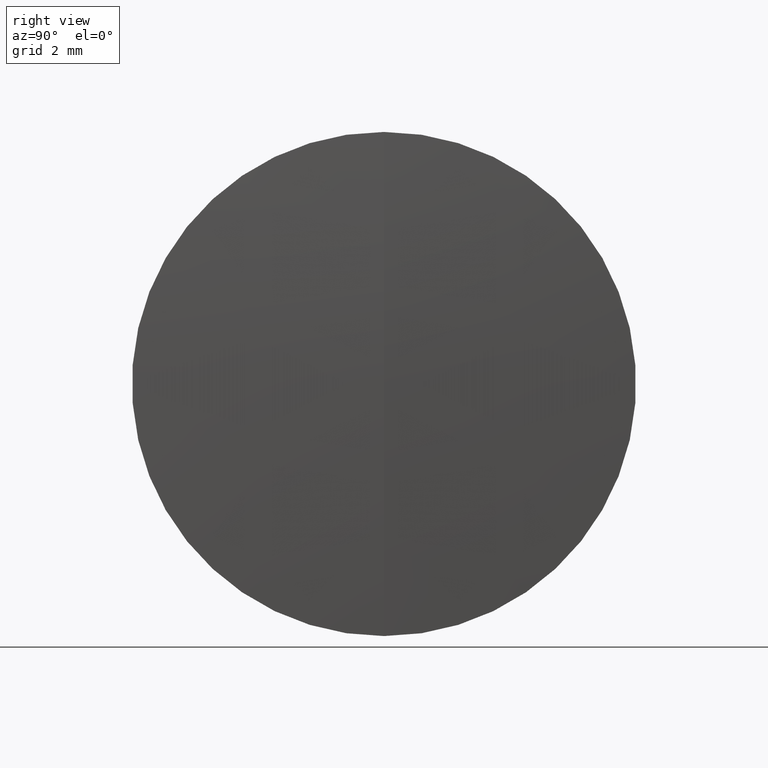
[diagram: clean part render]
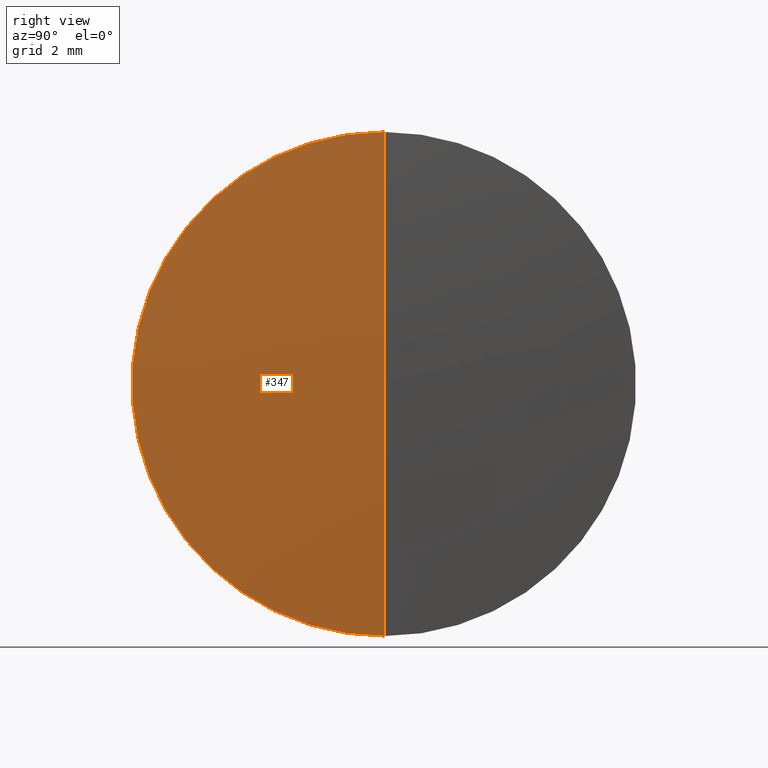
[diagram: same view with one face highlighted and labeled with its STEP entity id]
A machine part, right view. The second image highlights one B-rep face of the part: STEP entity #347.
In plain terms, the highlighted spherical surface has radius 130.541 mm.
Its self-contained STEP definition (entity closure, byte-faithful):
#5 = EDGE_CURVE ( 'NONE', #121, #271, #224, .T. ) ;
#9 = CARTESIAN_POINT ( 'NONE',  ( 38.17090631032368700, 9.797174393178837500E-016, -8.000000000000007100 ) ) ;
#18 = DIRECTION ( 'NONE',  ( 0.0000000000000000000, 0.0000000000000000000, -1.000000000000000000 ) ) ;
#21 = DIRECTION ( 'NONE',  ( 0.0000000000000000000, 0.0000000000000000000, 1.000000000000000000 ) ) ;
#54 = CIRCLE ( 'NONE', #220, 130.5410000000000000 ) ;
#71 = FACE_OUTER_BOUND ( 'NONE', #92, .T. ) ;
#89 = DIRECTION ( 'NONE',  ( 0.0000000000000000000, -1.000000000000000000, 0.0000000000000000000 ) ) ;
#92 = EDGE_LOOP ( 'NONE', ( #109, #164, #141 ) ) ;
#109 = ORIENTED_EDGE ( 'NONE', *, *, #5, .F. ) ;
#118 = EDGE_CURVE ( 'NONE', #271, #247, #323, .T. ) ;
#121 = VERTEX_POINT ( 'NONE', #180 ) ;
#124 = AXIS2_PLACEMENT_3D ( 'NONE', #203, #334, #21 ) ;
#134 = DIRECTION ( 'NONE',  ( 0.0000000000000000000, -1.224646799147353200E-016, 1.000000000000000000 ) ) ;
#141 = ORIENTED_EDGE ( 'NONE', *, *, #118, .F. ) ;
#152 = AXIS2_PLACEMENT_3D ( 'NONE', #155, #299, #318 ) ;
#155 = CARTESIAN_POINT ( 'NONE',  ( 38.17090631032368700, 0.0000000000000000000, 0.0000000000000000000 ) ) ;
#157 = CARTESIAN_POINT ( 'NONE',  ( 38.17090631032368700, 0.0000000000000000000, 8.000000000000007100 ) ) ;
#164 = ORIENTED_EDGE ( 'NONE', *, *, #282, .T. ) ;
#180 = CARTESIAN_POINT ( 'NONE',  ( 38.41627061595365000, 0.0000000000000000000, 7.993330890374731700E-015 ) ) ;
#194 = DIRECTION ( 'NONE',  ( -0.0000000000000000000, 1.000000000000000000, 1.224646799147353200E-016 ) ) ;
#203 = CARTESIAN_POINT ( 'NONE',  ( -92.12472938404633300, 0.0000000000000000000, 0.0000000000000000000 ) ) ;
#220 = AXIS2_PLACEMENT_3D ( 'NONE', #246, #89, #18 ) ;
#224 = CIRCLE ( 'NONE', #340, 130.5410000000000000 ) ;
#246 = CARTESIAN_POINT ( 'NONE',  ( -92.12472938404633300, 0.0000000000000000000, 0.0000000000000000000 ) ) ;
#247 = VERTEX_POINT ( 'NONE', #157 ) ;
#265 = CARTESIAN_POINT ( 'NONE',  ( -92.12472938404633300, 0.0000000000000000000, 0.0000000000000000000 ) ) ;
#271 = VERTEX_POINT ( 'NONE', #9 ) ;
#282 = EDGE_CURVE ( 'NONE', #121, #247, #54, .T. ) ;
#290 = SPHERICAL_SURFACE ( 'NONE', #124, 130.5410000000000000 ) ;
#299 = DIRECTION ( 'NONE',  ( -1.000000000000000000, -0.0000000000000000000, -0.0000000000000000000 ) ) ;
#318 = DIRECTION ( 'NONE',  ( 0.0000000000000000000, 0.0000000000000000000, 1.000000000000000000 ) ) ;
#323 = CIRCLE ( 'NONE', #152, 8.000000000000007100 ) ;
#334 = DIRECTION ( 'NONE',  ( 0.0000000000000000000, 1.000000000000000000, 0.0000000000000000000 ) ) ;
#340 = AXIS2_PLACEMENT_3D ( 'NONE', #265, #194, #134 ) ;
#347 = ADVANCED_FACE ( 'NONE', ( #71 ), #290, .T. ) ;